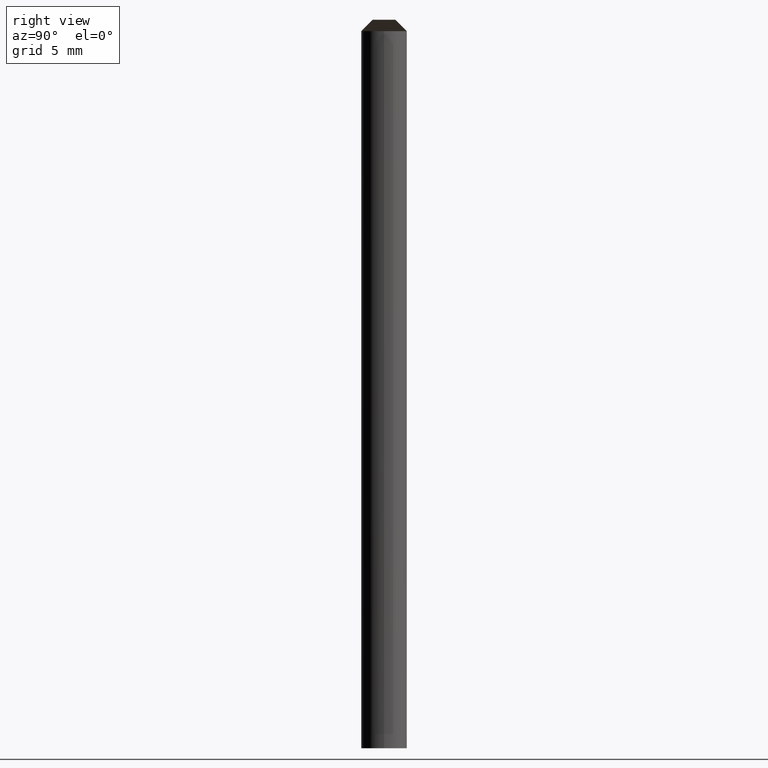
[diagram: clean part render]
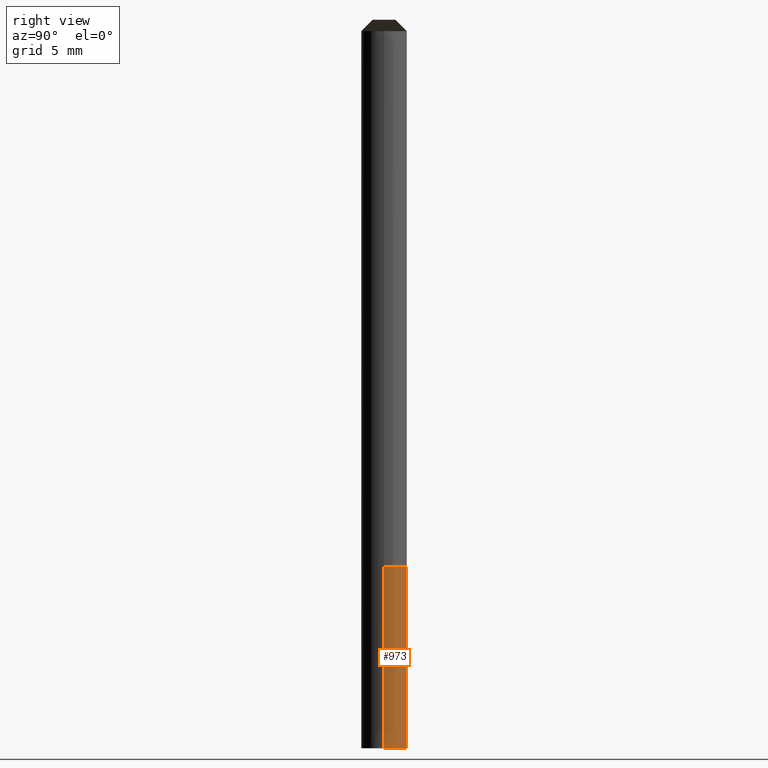
[diagram: same view with one face highlighted and labeled with its STEP entity id]
A machine part, right view. The second image highlights one B-rep face of the part: STEP entity #973.
In plain terms, the highlighted face is a freeform B-spline surface patch.
Its self-contained STEP definition (entity closure, byte-faithful):
#316=CARTESIAN_POINT('',(1.0,0.0,-8.0));
#527=CARTESIAN_POINT('',(0.0,1.0,-8.0));
#738=CARTESIAN_POINT('',(-1.0,0.0,-8.0));
#901=CARTESIAN_POINT('',(1.0,1.0,-8.0));
#902=CARTESIAN_POINT('',(-1.0,1.0,-8.0));
#903=CARTESIAN_POINT('',(1.0,0.0,0.0));
#904=CARTESIAN_POINT('',(1.0,1.0,0.0));
#905=CARTESIAN_POINT('',(0.0,1.0,0.0));
#906=CARTESIAN_POINT('',(-1.0,1.0,0.0));
#907=CARTESIAN_POINT('',(-1.0,0.0,0.0));
#954=(
BOUNDED_SURFACE()
B_SPLINE_SURFACE(1,2,(
(#316,#901,#527,#902,#738),
(#903,#904,#905,#906,#907)
), .UNSPECIFIED.,.F.,.F.,.F.)
B_SPLINE_SURFACE_WITH_KNOTS((2,2),(3,2,3),(
0.0,1.0),(
0.0,0.5,1.0), .UNSPECIFIED.)
GEOMETRIC_REPRESENTATION_ITEM()
RATIONAL_B_SPLINE_SURFACE(((1.0,0.707106781187,1.0,0.707106781187,1.0),
(1.0,0.707106781187,1.0,0.707106781187,1.0)
))
REPRESENTATION_ITEM('')
SURFACE()
);
#955=(
BOUNDED_CURVE()
B_SPLINE_CURVE(2,(#738,#902,#527,#901,#316),.UNSPECIFIED.,.F.,.F.)
B_SPLINE_CURVE_WITH_KNOTS((3,2,3),
(0.0,0.5,1.0),.UNSPECIFIED.)
CURVE()
GEOMETRIC_REPRESENTATION_ITEM()
RATIONAL_B_SPLINE_CURVE((1.0,0.707106781187,1.0,0.707106781187,1.0))
REPRESENTATION_ITEM('')
);
#956=(
BOUNDED_CURVE()
B_SPLINE_CURVE(1,(#316,#903),.UNSPECIFIED.,.F.,.F.)
B_SPLINE_CURVE_WITH_KNOTS((2,2),
(0.0,1.0),.UNSPECIFIED.)
CURVE()
GEOMETRIC_REPRESENTATION_ITEM()
RATIONAL_B_SPLINE_CURVE((1.0,1.0))
REPRESENTATION_ITEM('')
);
#957=(
BOUNDED_CURVE()
B_SPLINE_CURVE(2,(#903,#904,#905,#906,#907),.UNSPECIFIED.,.F.,.F.)
B_SPLINE_CURVE_WITH_KNOTS((3,2,3),
(0.0,0.5,1.0),.UNSPECIFIED.)
CURVE()
GEOMETRIC_REPRESENTATION_ITEM()
RATIONAL_B_SPLINE_CURVE((1.0,0.707106781187,1.0,0.707106781187,1.0))
REPRESENTATION_ITEM('')
);
#958=(
BOUNDED_CURVE()
B_SPLINE_CURVE(1,(#907,#738),.UNSPECIFIED.,.F.,.F.)
B_SPLINE_CURVE_WITH_KNOTS((2,2),
(0.0,1.0),.UNSPECIFIED.)
CURVE()
GEOMETRIC_REPRESENTATION_ITEM()
RATIONAL_B_SPLINE_CURVE((1.0,1.0))
REPRESENTATION_ITEM('')
);
#959=VERTEX_POINT('',#316);
#960=VERTEX_POINT('',#738);
#961=VERTEX_POINT('',#903);
#962=VERTEX_POINT('',#907);
#963=EDGE_CURVE('',#960,#959,#955,.T.);
#964=EDGE_CURVE('',#959,#961,#956,.T.);
#965=EDGE_CURVE('',#961,#962,#957,.T.);
#966=EDGE_CURVE('',#962,#960,#958,.T.);
#967=ORIENTED_EDGE('',*,*,#963,.T.);
#968=ORIENTED_EDGE('',*,*,#964,.T.);
#969=ORIENTED_EDGE('',*,*,#965,.T.);
#970=ORIENTED_EDGE('',*,*,#966,.T.);
#971=EDGE_LOOP('',(#967,#968,#969,#970));
#972=FACE_OUTER_BOUND('',#971,.T.);
#973=ADVANCED_FACE('',(#972),#954,.T.);